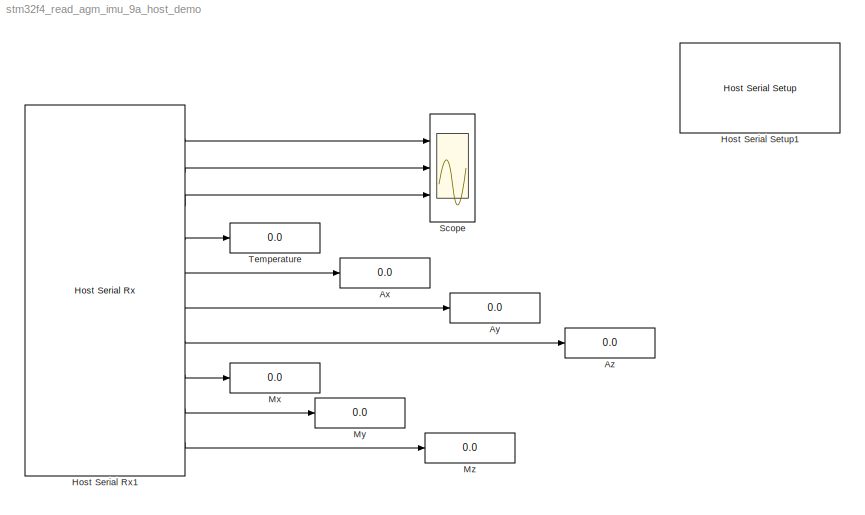
MODEL stm32f4_read_agm_imu_9a_host_demo
KIND model
BLOCK [Display] Ax
  Decimation = 1
  Lockdown = off
  Ports = [1]
BLOCK [Display] Ay
  Decimation = 1
  Lockdown = off
  Ports = [1]
BLOCK [Display] Az
  Decimation = 1
  Lockdown = off
  Ports = [1]
BLOCK [Reference] Host Serial Rx1  REF=amg_usbconverter_n_connect_lib/Host Serial Rx
  Ports = [0, 10]
  SourceBlock = amg_usbconverter_n_connect_lib/Host Serial Rx
  SourceType = amg_usbconverter_n_connect
  asciiformat = '%d,%f'
  autoport = '<empty>'
  baudrate = 115200
  binheader = '7E 7E'
  binterminator = '03 03'
  blockid = HostSerialRx1
  cinputportlabel = 0
  compat = 0
  conf = rx
  coutputportlabel = A
  databits = 8
  enablecustomportlabel = off
  enableinitialvalues = off
  flowcontrol = None
  initialvalues = []
  inputportlabel = {}
  inputporttype = []
  inputportwidth = []
  optionstring = []
  outputportlabel = {'single','single','single','single','single','single','single','single','single','single'}
  outputporttype = [1 1 1 1 1 1 1 1 1 1]
  outputportwidth = [1 1 1 1 1 1 1 1 1 1]
  packetmode = Binary
  parity = None
  port = <auto>
  portpinstr = 0
  porttype_double = 0
  porttype_int16 = 0
  porttype_int32 = 0
  porttype_int8 = 0
  porttype_single = 10
  porttype_uint16 = 0
  porttype_uint32 = 0
  porttype_uint8 = 0
  rx_asciiterminator = CRLF (0x0D 0x0A - \"<path>")
  sampletime = -1
  stopbit = 1
  timeout = 5
  transfer = Blocking
  tx_asciiterminator = CRLF (0x0D 0x0A - \"<path>")
BLOCK [Reference] Host Serial Setup1  REF=amg_usbconverter_n_connect_lib/Host Serial Setup
  Ports = []
  SourceBlock = amg_usbconverter_n_connect_lib/Host Serial Setup
  SourceType = amg_usbconverter_n_connect
  asciiformat = '%d %u %x'
  autoport = '<empty>'
  baudrate = 115200
  binheader = '7E 7E'
  binterminator = '03 03'
  blockid = HostSerialSetup1
  cinputportlabel = 0
  compat = 0
  conf = setup
  coutputportlabel = A
  databits = 8
  enablecustomportlabel = off
  flowcontrol = None
  initialvalues = []
  inputportlabel = {}
  inputporttype = []
  inputportwidth = []
  optionstring = []
  outputportlabel = {}
  outputporttype = []
  outputportwidth = []
  packetmode = Binary
  parity = None
  port = <auto>
  portpinstr = 0
  porttype_double = 0
  porttype_int16 = 0
  porttype_int32 = 0
  porttype_int8 = 0
  porttype_single = 1
  porttype_uint16 = 0
  porttype_uint32 = 2
  porttype_uint8 = 0
  rx_asciiterminator = CRLF (0x0D 0x0A - \"<path>")
  sampletime = -1
  stopbit = 1
  timeout = 2
  transfer = Blocking
  tx_asciiterminator = CRLF (0x0D 0x0A - \"<path>")
BLOCK [Display] Mx
  Decimation = 1
  Lockdown = off
  Ports = [1]
BLOCK [Display] My
  Decimation = 1
  Lockdown = off
  Ports = [1]
BLOCK [Display] Mz
  Decimation = 1
  Lockdown = off
  Ports = [1]
BLOCK [Scope] Scope
  DataFormat = StructureWithTime
  Floating = off
  NumInputPorts = 3
  Ports = [3]
  SampleTime = 0
  TimeRange = 1200
  YMax = 300~300~200
  YMin = -300~-300~-200
BLOCK [Display] Temperature
  Decimation = 1
  Lockdown = off
  Ports = [1]
LINE Host Serial Rx1:1 -> Scope:1
LINE Host Serial Rx1:10 -> Mz:1
LINE Host Serial Rx1:2 -> Scope:2
LINE Host Serial Rx1:3 -> Scope:3
LINE Host Serial Rx1:4 -> Temperature:1
LINE Host Serial Rx1:5 -> Ax:1
LINE Host Serial Rx1:6 -> Ay:1
LINE Host Serial Rx1:7 -> Az:1
LINE Host Serial Rx1:8 -> Mx:1
LINE Host Serial Rx1:9 -> My:1
note: 4 file-system paths scrubbed to <path> (not preserved elsewhere — flat text is the only slx artifact)
